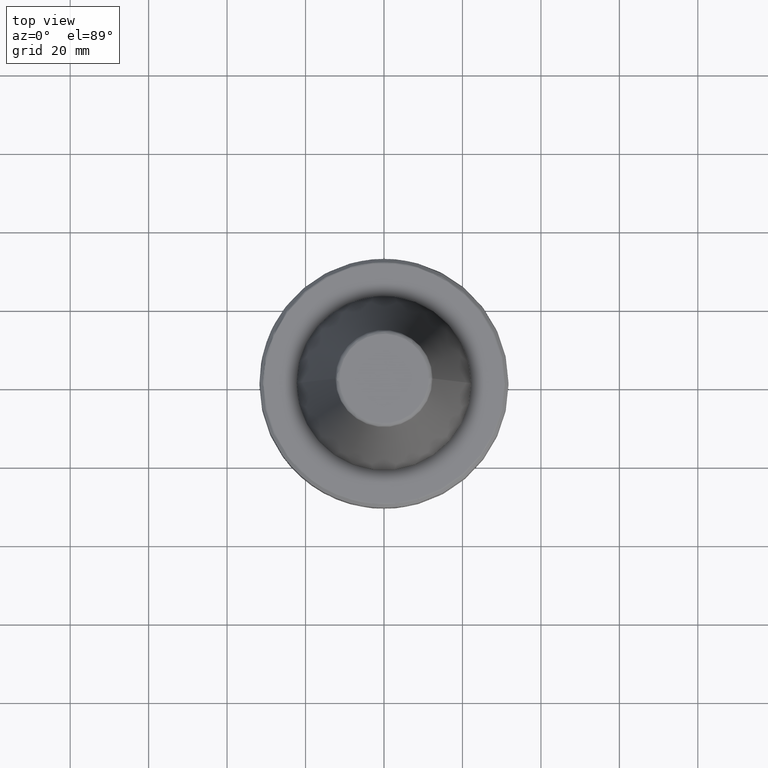
[diagram: clean part render]
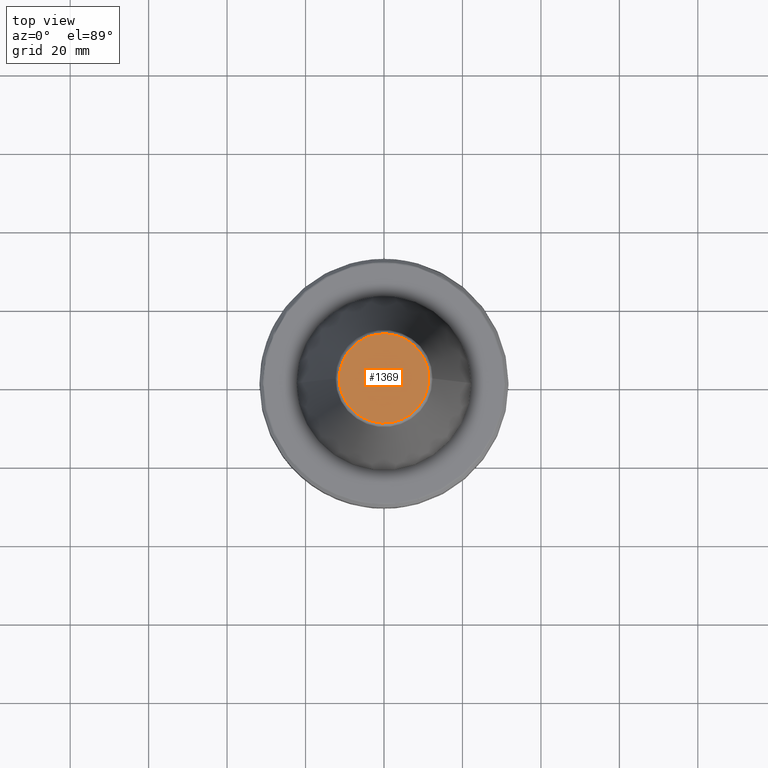
[diagram: same view with one face highlighted and labeled with its STEP entity id]
A machine part, top view. The second image highlights one B-rep face of the part: STEP entity #1369.
In plain terms, the highlighted planar face has unit normal (0, 0, 1).
Its self-contained STEP definition (entity closure, byte-faithful):
#137 = VERTEX_POINT ( 'NONE', #2793 ) ;
#544 = EDGE_CURVE ( 'NONE', #1859, #137, #845, .T. ) ;
#708 = CARTESIAN_POINT ( 'NONE',  ( 11.38516258961892900, -22.77032517923785400, 68.40000000000000600 ) ) ;
#830 = FACE_OUTER_BOUND ( 'NONE', #2891, .T. ) ;
#845 =( BOUNDED_CURVE ( )  B_SPLINE_CURVE ( 3, ( #1070, #708, #3077, #1598 ),
 .UNSPECIFIED., .F., .F. ) 
 B_SPLINE_CURVE_WITH_KNOTS ( ( 4, 4 ),
 ( 0.0000000000000000000, 1.000000000000000000 ),
 .UNSPECIFIED. ) 
 CURVE ( )  GEOMETRIC_REPRESENTATION_ITEM ( )  RATIONAL_B_SPLINE_CURVE ( ( 1.000000000000000000, 0.3333333333333333700, 0.3333333333333333700, 1.000000000000000000 ) ) 
 REPRESENTATION_ITEM ( '' )  );
#1070 = CARTESIAN_POINT ( 'NONE',  ( 11.38516258961892900, 0.0000000000000000000, 68.40000000000000600 ) ) ;
#1108 = CARTESIAN_POINT ( 'NONE',  ( 0.0000000000000000000, 0.0000000000000000000, 68.40000000000000600 ) ) ;
#1194 = CARTESIAN_POINT ( 'NONE',  ( 11.38516258961892900, 0.0000000000000000000, 68.40000000000000600 ) ) ;
#1206 = PLANE ( 'NONE',  #1508 ) ;
#1369 = ADVANCED_FACE ( 'NONE', ( #830 ), #1206, .T. ) ;
#1426 = DIRECTION ( 'NONE',  ( 1.000000000000000000, 0.0000000000000000000, -0.0000000000000000000 ) ) ;
#1508 = AXIS2_PLACEMENT_3D ( 'NONE', #1108, #2727, #1426 ) ;
#1520 = EDGE_CURVE ( 'NONE', #137, #1859, #1991, .T. ) ;
#1598 = CARTESIAN_POINT ( 'NONE',  ( -11.38516258961892900, 1.418516855507481300E-015, 68.40000000000000600 ) ) ;
#1703 = CARTESIAN_POINT ( 'NONE',  ( -11.38516258961892500, 22.77032517923785400, 68.40000000000000600 ) ) ;
#1859 = VERTEX_POINT ( 'NONE', #1194 ) ;
#1959 = CARTESIAN_POINT ( 'NONE',  ( 11.38516258961892900, 0.0000000000000000000, 68.40000000000000600 ) ) ;
#1968 = CARTESIAN_POINT ( 'NONE',  ( 11.38516258961892900, 22.77032517923785400, 68.40000000000000600 ) ) ;
#1991 =( BOUNDED_CURVE ( )  B_SPLINE_CURVE ( 3, ( #2890, #1703, #1968, #1959 ),
 .UNSPECIFIED., .F., .T. ) 
 B_SPLINE_CURVE_WITH_KNOTS ( ( 4, 4 ),
 ( 0.0000000000000000000, 1.000000000000000000 ),
 .UNSPECIFIED. ) 
 CURVE ( )  GEOMETRIC_REPRESENTATION_ITEM ( )  RATIONAL_B_SPLINE_CURVE ( ( 1.000000000000000000, 0.3333333333333333700, 0.3333333333333333700, 1.000000000000000000 ) ) 
 REPRESENTATION_ITEM ( '' )  );
#2083 = ORIENTED_EDGE ( 'NONE', *, *, #544, .F. ) ;
#2640 = ORIENTED_EDGE ( 'NONE', *, *, #1520, .F. ) ;
#2727 = DIRECTION ( 'NONE',  ( 0.0000000000000000000, 0.0000000000000000000, 1.000000000000000000 ) ) ;
#2793 = CARTESIAN_POINT ( 'NONE',  ( -11.38516258961892900, 1.418516855507481300E-015, 68.40000000000000600 ) ) ;
#2890 = CARTESIAN_POINT ( 'NONE',  ( -11.38516258961892900, 1.418516855507481300E-015, 68.40000000000000600 ) ) ;
#2891 = EDGE_LOOP ( 'NONE', ( #2640, #2083 ) ) ;
#3077 = CARTESIAN_POINT ( 'NONE',  ( -11.38516258961893300, -22.77032517923785400, 68.40000000000000600 ) ) ;